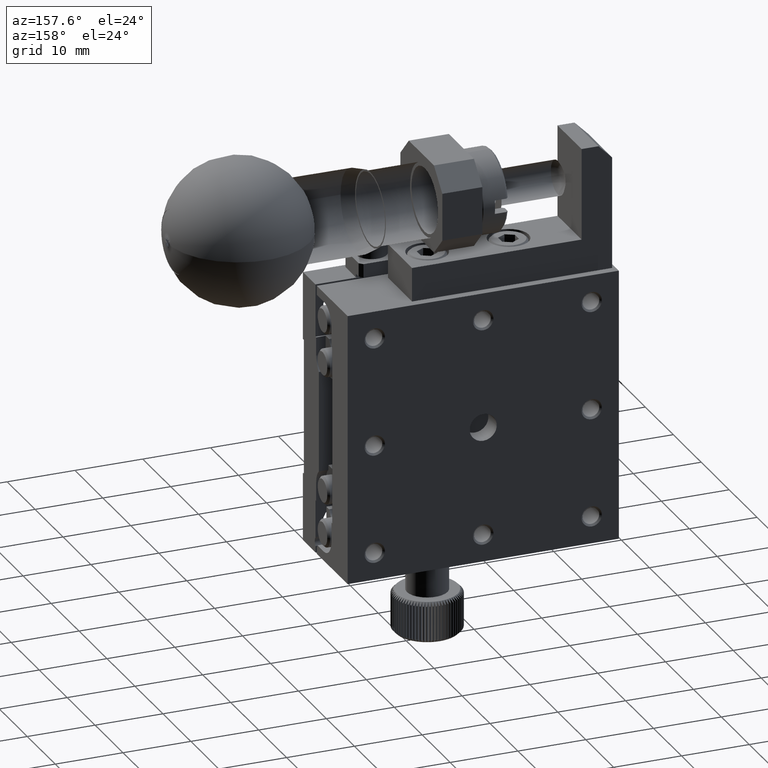
[diagram: clean part render]
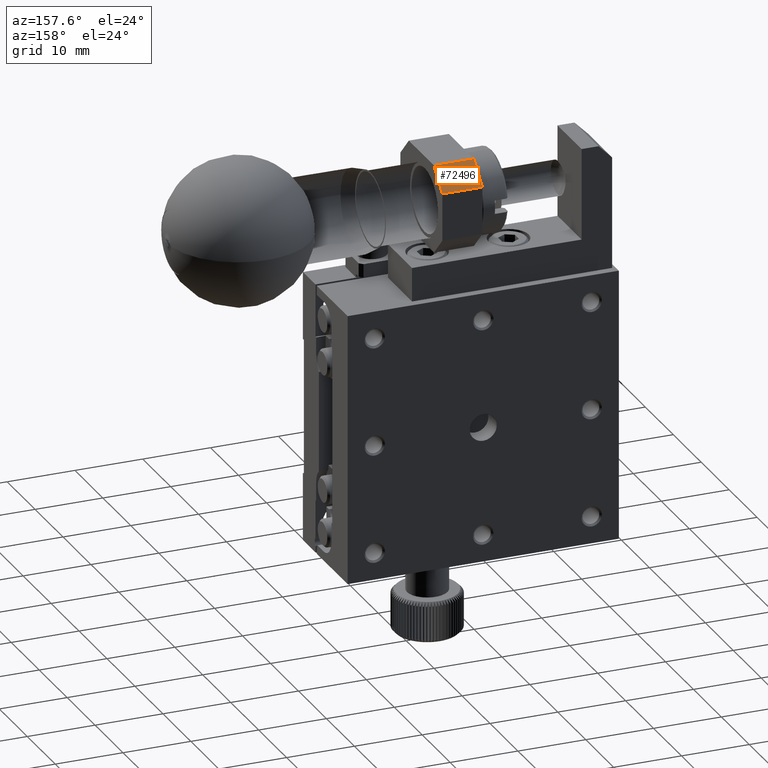
[diagram: same view with one face highlighted and labeled with its STEP entity id]
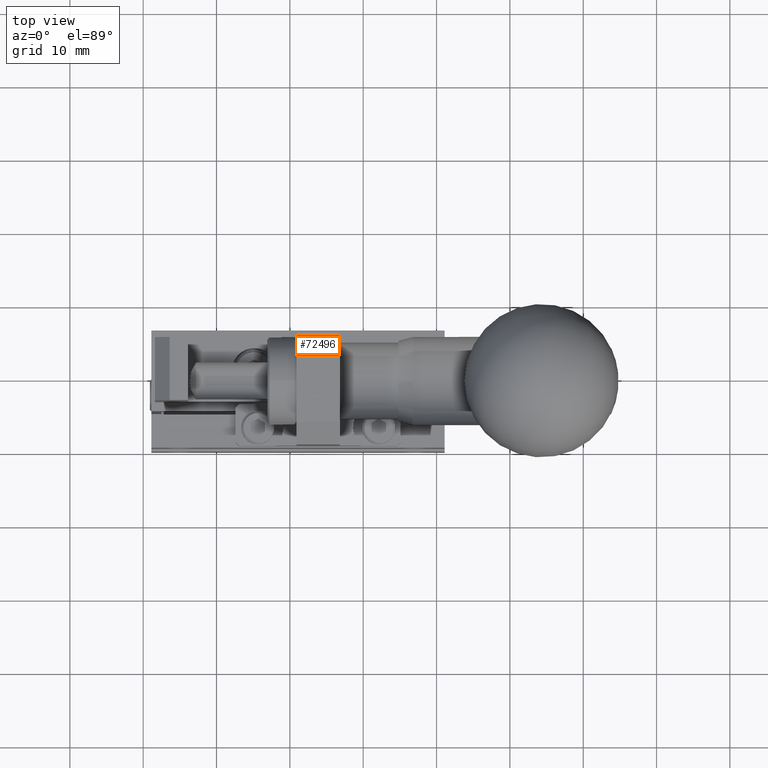
[diagram: same view with one face highlighted and labeled with its STEP entity id]
A machine part, auxiliary view. The second image highlights one B-rep face of the part: STEP entity #72496.
A second angle (top view) of the same face is appended — the face is thin or edge-on in the first view.
In plain terms, the highlighted planar face has unit normal (0, -0.7071, -0.7071).
Its self-contained STEP definition (entity closure, byte-faithful):
#5928 = CARTESIAN_POINT ( 'NONE',  ( 26.80959005914811755, 15.19999999999999929, 35.50000000000001421 ) ) ;
#7206 = VERTEX_POINT ( 'NONE', #39440 ) ;
#11813 = CARTESIAN_POINT ( 'NONE',  ( 20.90959005914811542, 15.19999999999999929, 35.50000000000001421 ) ) ;
#13709 = DIRECTION ( 'NONE',  ( 0.000000000000000000, -0.7071067811865470176, -0.7071067811865480168 ) ) ;
#14186 = PLANE ( 'NONE',  #50803 ) ;
#34846 = VECTOR ( 'NONE', #74321, 1000.000000000000000 ) ;
#39440 = CARTESIAN_POINT ( 'NONE',  ( 20.90959005914811542, 12.19999999999999574, 38.50000000000000000 ) ) ;
#41431 = CARTESIAN_POINT ( 'NONE',  ( 20.90959005914811542, 15.19999999999999929, 35.50000000000001421 ) ) ;
#42763 = EDGE_LOOP ( 'NONE', ( #76288, #45163, #50326, #77117 ) ) ;
#42817 = FACE_OUTER_BOUND ( 'NONE', #42763, .T. ) ;
#43154 = VECTOR ( 'NONE', #43202, 1000.000000000000000 ) ;
#43202 = DIRECTION ( 'NONE',  ( 1.000000000000000000, 0.000000000000000000, 0.000000000000000000 ) ) ;
#44832 = EDGE_CURVE ( 'NONE', #7206, #83028, #77699, .T. ) ;
#45163 = ORIENTED_EDGE ( 'NONE', *, *, #85600, .T. ) ;
#49966 = DIRECTION ( 'NONE',  ( 1.000000000000000000, -0.000000000000000000, 0.000000000000000000 ) ) ;
#50326 = ORIENTED_EDGE ( 'NONE', *, *, #44832, .T. ) ;
#50803 = AXIS2_PLACEMENT_3D ( 'NONE', #5928, #13709, #94337 ) ;
#52825 = VERTEX_POINT ( 'NONE', #85648 ) ;
#55349 = CARTESIAN_POINT ( 'NONE',  ( 26.80959005914811755, 12.19999999999999751, 38.50000000000000000 ) ) ;
#56458 = LINE ( 'NONE', #58285, #43154 ) ;
#58285 = CARTESIAN_POINT ( 'NONE',  ( 26.80959005914811755, 15.19999999999999929, 35.50000000000001421 ) ) ;
#59250 = LINE ( 'NONE', #81569, #34846 ) ;
#59787 = VECTOR ( 'NONE', #91506, 1000.000000000000000 ) ;
#65694 = VECTOR ( 'NONE', #49966, 1000.000000000000000 ) ;
#66932 = CARTESIAN_POINT ( 'NONE',  ( 26.80959005914811755, 12.19999999999999751, 38.50000000000000000 ) ) ;
#69507 = VERTEX_POINT ( 'NONE', #11813 ) ;
#72496 = ADVANCED_FACE ( 'NONE', ( #42817 ), #14186, .F. ) ;
#74321 = DIRECTION ( 'NONE',  ( 0.000000000000000000, -0.7071067811865497932, 0.7071067811865452413 ) ) ;
#76288 = ORIENTED_EDGE ( 'NONE', *, *, #76867, .F. ) ;
#76867 = EDGE_CURVE ( 'NONE', #69507, #52825, #56458, .T. ) ;
#77117 = ORIENTED_EDGE ( 'NONE', *, *, #84296, .F. ) ;
#77699 = LINE ( 'NONE', #55349, #65694 ) ;
#81569 = CARTESIAN_POINT ( 'NONE',  ( 26.80959005914811755, 15.20000000000000284, 35.50000000000001421 ) ) ;
#83028 = VERTEX_POINT ( 'NONE', #66932 ) ;
#84296 = EDGE_CURVE ( 'NONE', #52825, #83028, #59250, .T. ) ;
#85600 = EDGE_CURVE ( 'NONE', #69507, #7206, #92467, .T. ) ;
#85648 = CARTESIAN_POINT ( 'NONE',  ( 26.80959005914811755, 15.19999999999999751, 35.50000000000001421 ) ) ;
#91506 = DIRECTION ( 'NONE',  ( 0.000000000000000000, -0.7071067811865500152, 0.7071067811865450192 ) ) ;
#92467 = LINE ( 'NONE', #41431, #59787 ) ;
#94337 = DIRECTION ( 'NONE',  ( 0.000000000000000000, 0.7071067811865480168, -0.7071067811865470176 ) ) ;